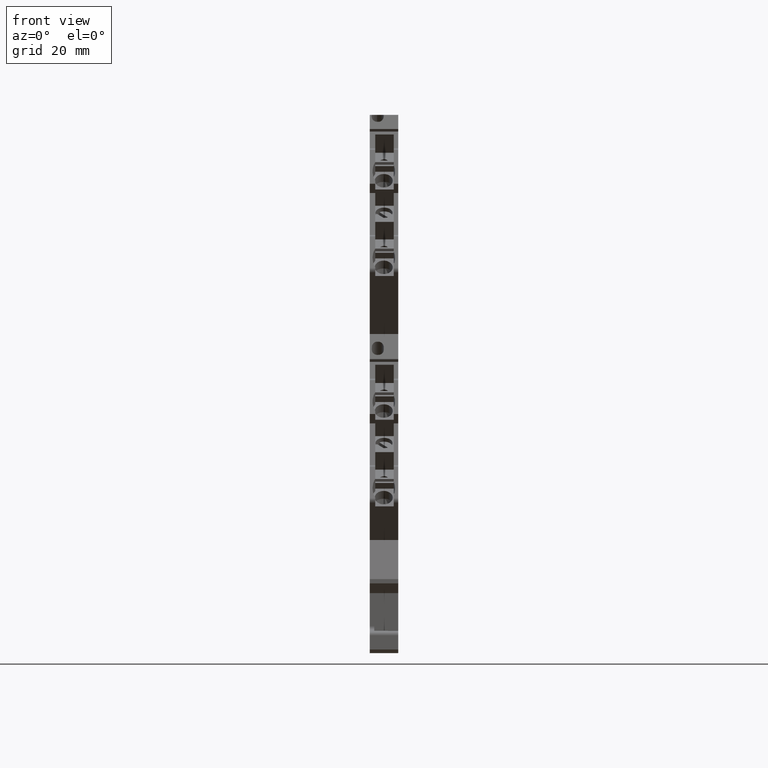
[diagram: clean part render]
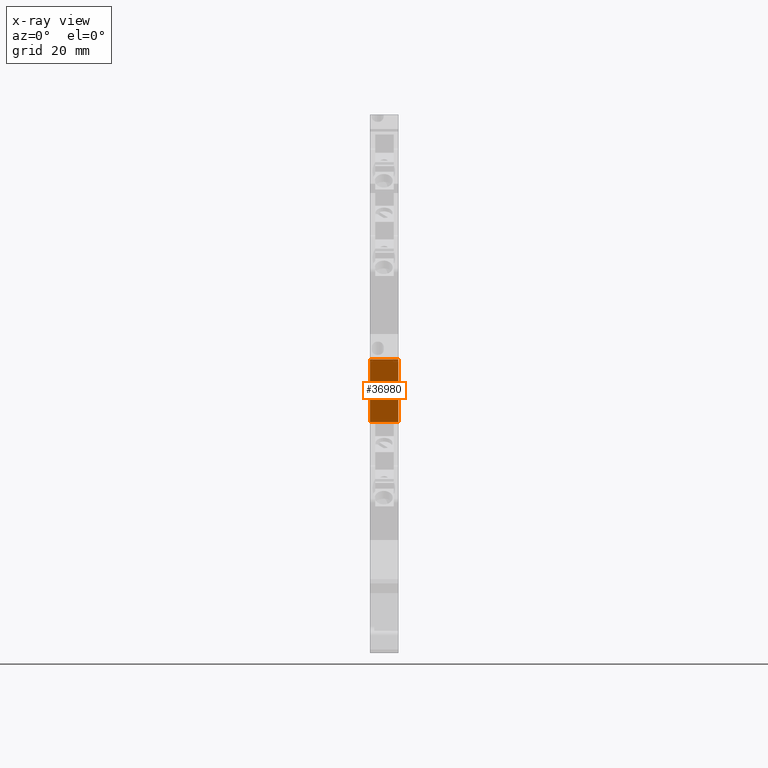
[diagram: x-ray — body ghosted, one internal face saturated and labeled with its STEP entity id]
A machine part, front view, then the same camera in x-ray: the body is ghosted and one INTERNAL B-rep face — a face not visible from any outside direction — is saturated and labeled: STEP entity #36980.
In plain terms, the highlighted planar face has unit normal (0, 0.8039, 0.5948).
Its self-contained STEP definition (entity closure, byte-faithful):
#1250=CARTESIAN_POINT('',(-22.8222550002266,56.0447007672601,
-14.6999999998734));
#1260=VERTEX_POINT('',#1250);
#1290=CARTESIAN_POINT('',(18.6486420283348,7.27163407851774E-15,
-14.6999999995054));
#1300=DIRECTION('',(-0.594822786743645,0.803856860622912,
-5.27789801480947E-12));
#1310=VECTOR('',#1300,1.);
#1320=LINE('',#1290,#1310);
#1330=CARTESIAN_POINT('',(-12.5490777099876,42.1612984679579,
-14.6999999997823));
#1340=VERTEX_POINT('',#1330);
#1350=EDGE_CURVE('',#1340,#1260,#1320,.T.);
#7080=CARTESIAN_POINT('',(-12.5490777100436,42.161298467958,
-8.40000000005536));
#7090=VERTEX_POINT('',#7080);
#7120=CARTESIAN_POINT('',(30.3030289597346,-15.749999999987,
-8.39999999967449));
#7130=DIRECTION('',(-0.594822786743645,0.803856860622912,
-5.28676819478312E-12));
#7140=VECTOR('',#7130,1.);
#7150=LINE('',#7120,#7140);
#7160=CARTESIAN_POINT('',(-22.8222550002825,56.0447007672601,
-8.40000000014667));
#7170=VERTEX_POINT('',#7160);
#7180=EDGE_CURVE('',#7090,#7170,#7150,.T.);
#30400=CARTESIAN_POINT('',(-22.822255000358,56.0447007672602,
0.100000000131965));
#30410=DIRECTION('',(-8.87912561076062E-12,6.54588571843686E-15,1.));
#30420=VECTOR('',#30410,1.);
#30430=LINE('',#30400,#30420);
#30440=EDGE_CURVE('',#1260,#7170,#30430,.T.);
#36820=CARTESIAN_POINT('',(-12.5490777100436,42.161298467958,
-8.40000000005536));
#36830=DIRECTION('',(0.803856860622912,0.594822786743645,
7.13365239655779E-12));
#36840=DIRECTION('',(0.594822786743645,-0.803856860622912,
5.28676819478312E-12));
#36850=AXIS2_PLACEMENT_3D('',#36820,#36830,#36840);
#36860=PLANE('',#36850);
#36870=ORIENTED_EDGE('',*,*,#7180,.T.);
#36880=CARTESIAN_POINT('',(-12.5490777101182,42.161298467958,
2.22465948440664E-10));
#36890=DIRECTION('',(8.87912561076062E-12,-6.5458857184369E-15,-1.));
#36900=VECTOR('',#36890,1.);
#36910=LINE('',#36880,#36900);
#36920=EDGE_CURVE('',#7090,#1340,#36910,.T.);
#36930=ORIENTED_EDGE('',*,*,#36920,.F.);
#36940=ORIENTED_EDGE('',*,*,#1350,.F.);
#36950=ORIENTED_EDGE('',*,*,#30440,.F.);
#36960=EDGE_LOOP('',(#36950,#36940,#36930,#36870));
#36970=FACE_OUTER_BOUND('',#36960,.T.);
#36980=ADVANCED_FACE('',(#36970),#36860,.F.);